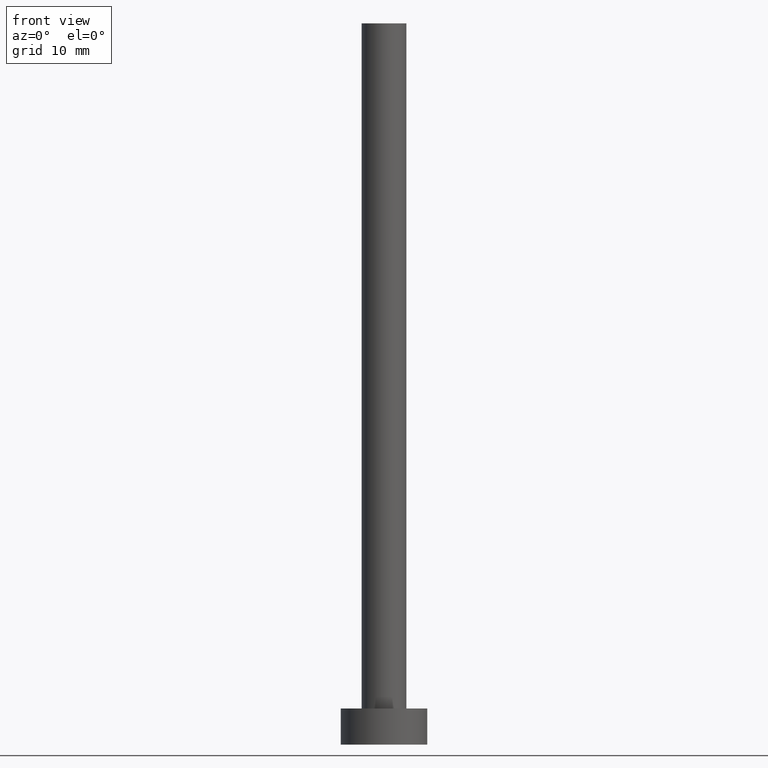
[diagram: clean part render]
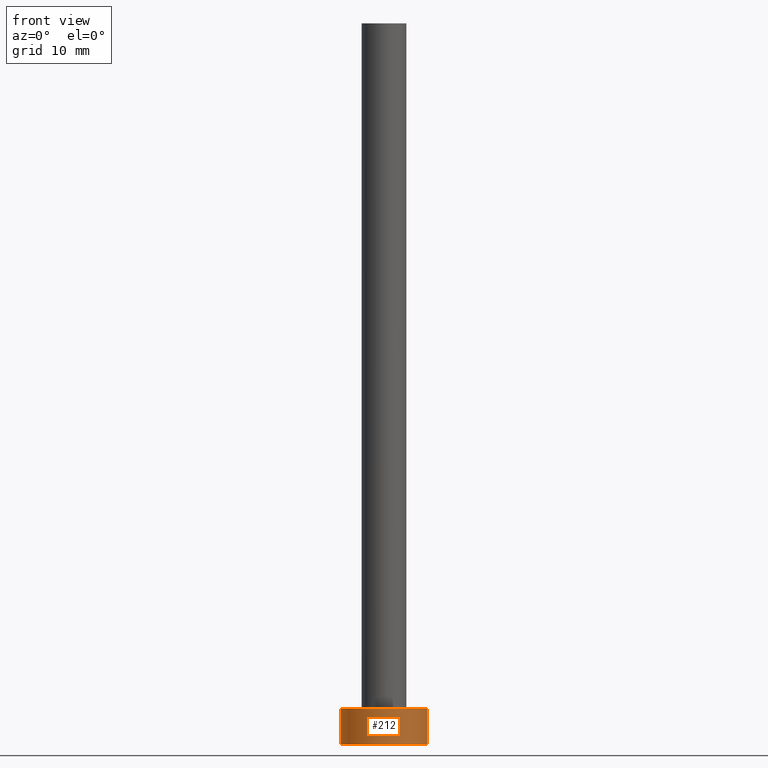
[diagram: same view with one face highlighted and labeled with its STEP entity id]
A machine part, front view. The second image highlights one B-rep face of the part: STEP entity #212.
In plain terms, the highlighted cylindrical surface (partial cylindrical patch) has radius 6 mm, axis along (-0, -0, -1).
Its self-contained STEP definition (entity closure, byte-faithful):
#3 = ORIENTED_EDGE ( 'NONE', *, *, #197, .T. ) ;
#10 = EDGE_CURVE ( 'NONE', #82, #40, #162, .T. ) ;
#13 = AXIS2_PLACEMENT_3D ( 'NONE', #192, #150, #78 ) ;
#17 = DIRECTION ( 'NONE',  ( -0.000000000000000000, -0.000000000000000000, -1.000000000000000000 ) ) ;
#30 = ORIENTED_EDGE ( 'NONE', *, *, #10, .F. ) ;
#40 = VERTEX_POINT ( 'NONE', #73 ) ;
#57 = DIRECTION ( 'NONE',  ( 0.000000000000000000, 0.000000000000000000, 1.000000000000000000 ) ) ;
#73 = CARTESIAN_POINT ( 'NONE',  ( 6.000000000000000888, 7.347880794884120722E-16, 0.000000000000000000 ) ) ;
#76 = DIRECTION ( 'NONE',  ( 1.000000000000000000, 0.000000000000000000, 0.000000000000000000 ) ) ;
#78 = DIRECTION ( 'NONE',  ( 1.000000000000000000, 0.000000000000000000, 0.000000000000000000 ) ) ;
#80 = CARTESIAN_POINT ( 'NONE',  ( -6.000000000000000888, 0.000000000000000000, 5.000000000000000000 ) ) ;
#82 = VERTEX_POINT ( 'NONE', #111 ) ;
#89 = EDGE_CURVE ( 'NONE', #206, #40, #138, .T. ) ;
#93 = AXIS2_PLACEMENT_3D ( 'NONE', #116, #57, #76 ) ;
#94 = FACE_OUTER_BOUND ( 'NONE', #242, .T. ) ;
#111 = CARTESIAN_POINT ( 'NONE',  ( 6.000000000000000888, 7.347880794884120722E-16, 5.000000000000000000 ) ) ;
#115 = DIRECTION ( 'NONE',  ( -0.000000000000000000, -0.000000000000000000, -1.000000000000000000 ) ) ;
#116 = CARTESIAN_POINT ( 'NONE',  ( 0.000000000000000000, 0.000000000000000000, 5.000000000000000000 ) ) ;
#122 = ORIENTED_EDGE ( 'NONE', *, *, #179, .F. ) ;
#124 = ORIENTED_EDGE ( 'NONE', *, *, #89, .T. ) ;
#129 = VECTOR ( 'NONE', #17, 1000.000000000000000 ) ;
#131 = LINE ( 'NONE', #80, #129 ) ;
#138 = CIRCLE ( 'NONE', #13, 6.000000000000000888 ) ;
#145 = VERTEX_POINT ( 'NONE', #211 ) ;
#146 = DIRECTION ( 'NONE',  ( -0.000000000000000000, -0.000000000000000000, -1.000000000000000000 ) ) ;
#150 = DIRECTION ( 'NONE',  ( 0.000000000000000000, 0.000000000000000000, 1.000000000000000000 ) ) ;
#153 = VECTOR ( 'NONE', #146, 1000.000000000000000 ) ;
#155 = AXIS2_PLACEMENT_3D ( 'NONE', #231, #115, #213 ) ;
#156 = CYLINDRICAL_SURFACE ( 'NONE', #155, 6.000000000000000888 ) ;
#162 = LINE ( 'NONE', #240, #153 ) ;
#179 = EDGE_CURVE ( 'NONE', #145, #82, #190, .T. ) ;
#190 = CIRCLE ( 'NONE', #93, 6.000000000000000888 ) ;
#192 = CARTESIAN_POINT ( 'NONE',  ( 0.000000000000000000, 0.000000000000000000, 0.000000000000000000 ) ) ;
#197 = EDGE_CURVE ( 'NONE', #145, #206, #131, .T. ) ;
#206 = VERTEX_POINT ( 'NONE', #252 ) ;
#211 = CARTESIAN_POINT ( 'NONE',  ( -6.000000000000000888, 0.000000000000000000, 5.000000000000000000 ) ) ;
#212 = ADVANCED_FACE ( 'NONE', ( #94 ), #156, .T. ) ;
#213 = DIRECTION ( 'NONE',  ( -1.000000000000000000, 0.000000000000000000, 0.000000000000000000 ) ) ;
#231 = CARTESIAN_POINT ( 'NONE',  ( 0.000000000000000000, 0.000000000000000000, 5.000000000000000000 ) ) ;
#240 = CARTESIAN_POINT ( 'NONE',  ( 6.000000000000000888, 7.347880794884120722E-16, 5.000000000000000000 ) ) ;
#242 = EDGE_LOOP ( 'NONE', ( #30, #122, #3, #124 ) ) ;
#252 = CARTESIAN_POINT ( 'NONE',  ( -6.000000000000000888, 0.000000000000000000, 0.000000000000000000 ) ) ;